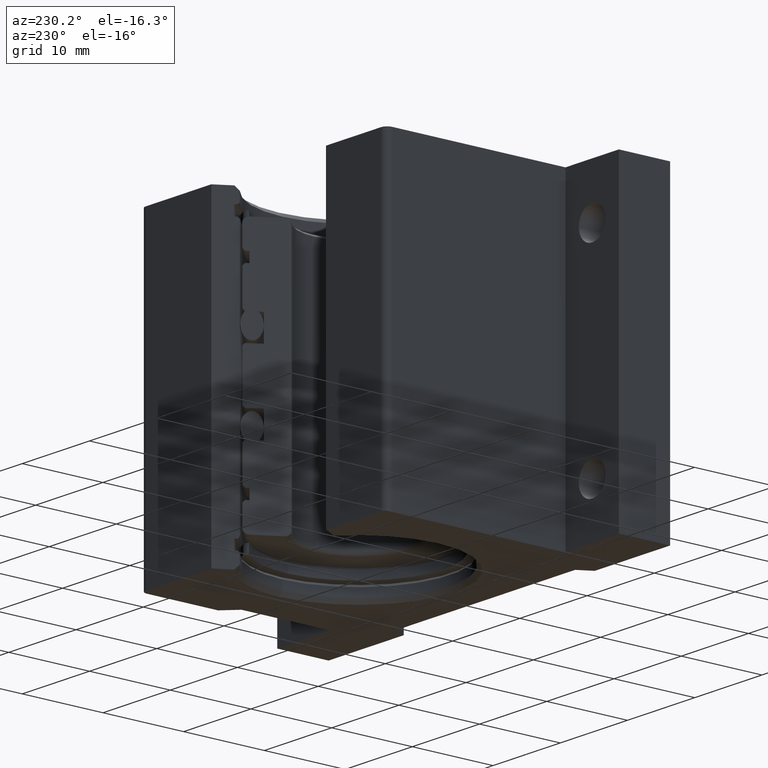
[diagram: clean part render]
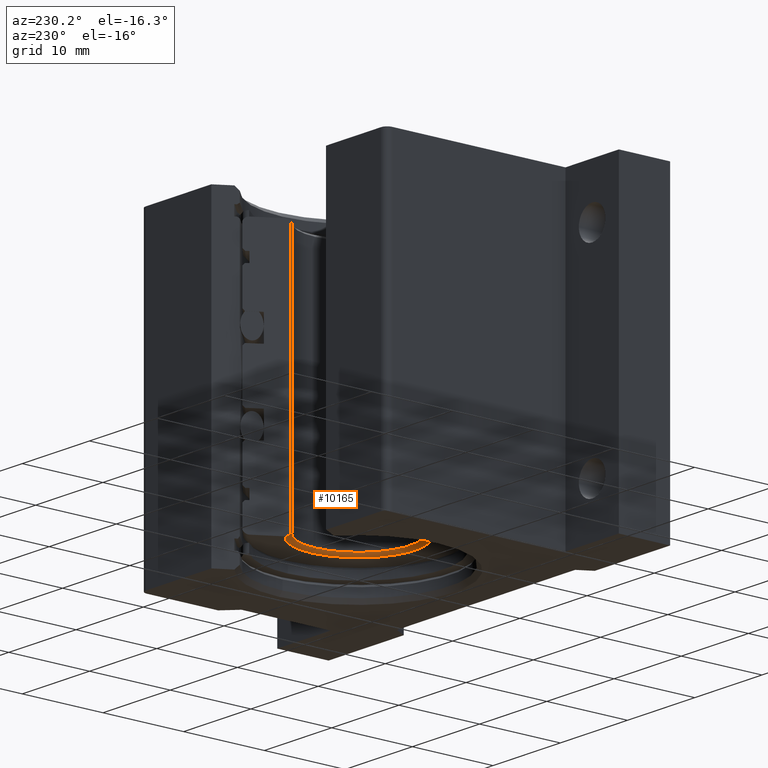
[diagram: same view with one face highlighted and labeled with its STEP entity id]
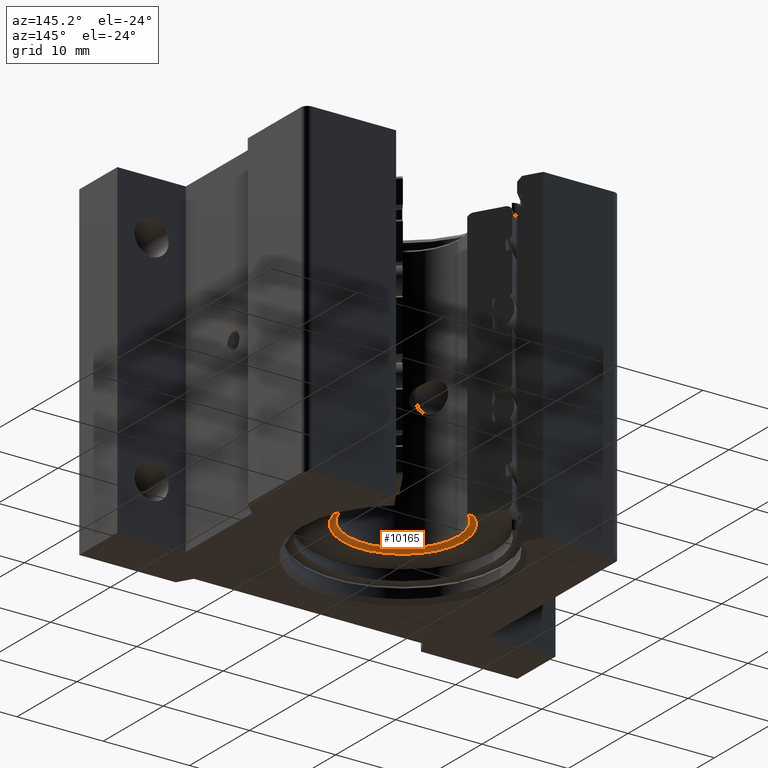
[diagram: same view with one face highlighted and labeled with its STEP entity id]
A machine part, auxiliary view. The second image highlights one B-rep face of the part: STEP entity #10165.
A second angle (auxiliary view) of the same face is appended — the face is thin or edge-on in the first view.
In plain terms, the highlighted toroidal blend (fillet) surface has major radius 7.0352 mm and minor (blend) radius 0.762 mm.
Its self-contained STEP definition (entity closure, byte-faithful):
#121 = CARTESIAN_POINT ( 'NONE',  ( 0.000000000000000000, -7.023156803840997818E-17, -0.6070534806292791075 ) ) ;
#244 = DIRECTION ( 'NONE',  ( 0.000000000000000000, 1.000000000000000000, -4.948999988522215975E-16 ) ) ;
#353 = DIRECTION ( 'NONE',  ( 0.000000000000000000, 1.224646799147353207E-16, 1.000000000000000000 ) ) ;
#377 = ORIENTED_EDGE ( 'NONE', *, *, #765, .T. ) ;
#379 = CARTESIAN_POINT ( 'NONE',  ( 0.000000000000000000, -7.023156803840997818E-17, -0.6070534806292791075 ) ) ;
#435 = CARTESIAN_POINT ( 'NONE',  ( -0.1638920012166681928, 0.2096469794995290681, -0.6209123194039003479 ) ) ;
#548 = TOROIDAL_SURFACE ( 'NONE', #8272, 0.2769749999999999712, 0.03000000000000002318 ) ;
#689 = DIRECTION ( 'NONE',  ( -0.000000000000000000, -1.224646799147353207E-16, -1.000000000000000000 ) ) ;
#745 = CIRCLE ( 'NONE', #7631, 0.2760000000000000231 ) ;
#765 = EDGE_CURVE ( 'NONE', #7533, #10410, #10062, .T. ) ;
#792 = DIRECTION ( 'NONE',  ( 0.000000000000000000, 1.000000000000000000, -1.224646799147352961E-16 ) ) ;
#1034 = ORIENTED_EDGE ( 'NONE', *, *, #9368, .T. ) ;
#1362 = CARTESIAN_POINT ( 'NONE',  ( 0.1688860082560865727, 0.2182968534251583659, -0.6212341520640487502 ) ) ;
#1373 = CARTESIAN_POINT ( 'NONE',  ( -0.2514750000000000041, 3.079680538155807146E-17, -0.6070534806292791075 ) ) ;
#1450 = CARTESIAN_POINT ( 'NONE',  ( 0.2760000000000000231, 0.000000000000000000, -0.6212341520640487502 ) ) ;
#1587 = DIRECTION ( 'NONE',  ( 1.776356839400250465E-15, 1.000000000000000000, -4.948999988522215975E-16 ) ) ;
#1622 = AXIS2_PLACEMENT_3D ( 'NONE', #379, #2827, #3521 ) ;
#1669 = AXIS2_PLACEMENT_3D ( 'NONE', #9733, #3986, #1587 ) ;
#1853 = DIRECTION ( 'NONE',  ( 0.000000000000000000, 1.000000000000000000, -2.715824628356957328E-16 ) ) ;
#1946 = EDGE_CURVE ( 'NONE', #7967, #5804, #7430, .T. ) ;
#2065 = EDGE_CURVE ( 'NONE', #7907, #2224, #8792, .T. ) ;
#2224 = VERTEX_POINT ( 'NONE', #10622 ) ;
#2330 = ORIENTED_EDGE ( 'NONE', *, *, #3036, .T. ) ;
#2439 = DIRECTION ( 'NONE',  ( 0.000000000000000000, 1.000000000000000000, -4.948999988522215975E-16 ) ) ;
#2469 = VERTEX_POINT ( 'NONE', #10605 ) ;
#2569 = CARTESIAN_POINT ( 'NONE',  ( 0.2514750000000000041, 1.061536189819736218E-31, -0.6070534806292791075 ) ) ;
#2790 = CIRCLE ( 'NONE', #8133, 0.2514750000000000041 ) ;
#2794 = CARTESIAN_POINT ( 'NONE',  ( -0.1564999999999998892, 0.1968436578226487321, -0.6070534806292792185 ) ) ;
#2807 = ORIENTED_EDGE ( 'NONE', *, *, #1946, .T. ) ;
#2827 = DIRECTION ( 'NONE',  ( 0.000000000000000000, 1.224646799147353207E-16, 1.000000000000000000 ) ) ;
#3036 = EDGE_CURVE ( 'NONE', #10410, #7967, #2790, .T. ) ;
#3153 = EDGE_CURVE ( 'NONE', #6744, #7907, #745, .T. ) ;
#3466 = CARTESIAN_POINT ( 'NONE',  ( 0.1565000000000000002, 0.1968436578226487321, -0.6070534806292807728 ) ) ;
#3521 = DIRECTION ( 'NONE',  ( 0.000000000000000000, 1.000000000000000000, -2.715824628356957328E-16 ) ) ;
#3581 = CARTESIAN_POINT ( 'NONE',  ( 0.1688860082560865727, 0.2182968534251583659, -0.6212341520640487502 ) ) ;
#3986 = DIRECTION ( 'NONE',  ( -0.000000000000000000, -1.224646799147353207E-16, -1.000000000000000000 ) ) ;
#4901 = ORIENTED_EDGE ( 'NONE', *, *, #6401, .F. ) ;
#5164 = EDGE_LOOP ( 'NONE', ( #4901, #377, #2330, #2807, #5251, #7684, #8601, #1034 ) ) ;
#5228 = DIRECTION ( 'NONE',  ( 0.000000000000000000, 1.000000000000000000, -2.715824628356957328E-16 ) ) ;
#5251 = ORIENTED_EDGE ( 'NONE', *, *, #8122, .F. ) ;
#5804 = VERTEX_POINT ( 'NONE', #6507 ) ;
#5851 = AXIS2_PLACEMENT_3D ( 'NONE', #9130, #9179, #244 ) ;
#6401 = EDGE_CURVE ( 'NONE', #7533, #2469, #9456, .T. ) ;
#6507 = CARTESIAN_POINT ( 'NONE',  ( 0.1565000000000000002, 0.1968436578226487321, -0.6070534806292807728 ) ) ;
#6744 = VERTEX_POINT ( 'NONE', #1362 ) ;
#7015 = CARTESIAN_POINT ( 'NONE',  ( -0.1688860082560866283, 0.2182968534251583936, -0.6212341520640487502 ) ) ;
#7258 = B_SPLINE_CURVE_WITH_KNOTS ( 'NONE', 3,
 ( #3581, #8558, #10181, #3466 ),
 .UNSPECIFIED., .F., .F.,
 ( 4, 4 ),
 ( 2.277938103354167691E-07, 0.0007509806391167035125 ),
 .UNSPECIFIED. ) ;
#7430 = CIRCLE ( 'NONE', #7602, 0.2514750000000000041 ) ;
#7533 = VERTEX_POINT ( 'NONE', #9072 ) ;
#7602 = AXIS2_PLACEMENT_3D ( 'NONE', #7743, #353, #1853 ) ;
#7631 = AXIS2_PLACEMENT_3D ( 'NONE', #8974, #689, #2439 ) ;
#7684 = ORIENTED_EDGE ( 'NONE', *, *, #3153, .T. ) ;
#7713 = CIRCLE ( 'NONE', #1669, 0.2760000000000000231 ) ;
#7743 = CARTESIAN_POINT ( 'NONE',  ( 0.000000000000000000, -7.023156803840997818E-17, -0.6070534806292791075 ) ) ;
#7907 = VERTEX_POINT ( 'NONE', #1450 ) ;
#7967 = VERTEX_POINT ( 'NONE', #2569 ) ;
#8122 = EDGE_CURVE ( 'NONE', #6744, #5804, #7258, .T. ) ;
#8133 = AXIS2_PLACEMENT_3D ( 'NONE', #121, #9331, #5228 ) ;
#8272 = AXIS2_PLACEMENT_3D ( 'NONE', #9683, #10533, #792 ) ;
#8558 = CARTESIAN_POINT ( 'NONE',  ( 0.1638919177847064923, 0.2096468349911324580, -0.6209123140272299057 ) ) ;
#8601 = ORIENTED_EDGE ( 'NONE', *, *, #2065, .T. ) ;
#8632 = CARTESIAN_POINT ( 'NONE',  ( -0.1591534311868263163, 0.2014395354526197224, -0.6155227112161409941 ) ) ;
#8792 = CIRCLE ( 'NONE', #5851, 0.2760000000000000231 ) ;
#8974 = CARTESIAN_POINT ( 'NONE',  ( 0.000000000000000000, -7.196819942664506463E-17, -0.6212341520640487502 ) ) ;
#9072 = CARTESIAN_POINT ( 'NONE',  ( -0.1564999999999998892, 0.1968436578226487321, -0.6070534806292792185 ) ) ;
#9130 = CARTESIAN_POINT ( 'NONE',  ( 0.000000000000000000, -7.196819942664506463E-17, -0.6212341520640487502 ) ) ;
#9179 = DIRECTION ( 'NONE',  ( -0.000000000000000000, -1.224646799147353207E-16, -1.000000000000000000 ) ) ;
#9272 = FACE_OUTER_BOUND ( 'NONE', #5164, .T. ) ;
#9331 = DIRECTION ( 'NONE',  ( 0.000000000000000000, 1.224646799147353207E-16, 1.000000000000000000 ) ) ;
#9368 = EDGE_CURVE ( 'NONE', #2224, #2469, #7713, .T. ) ;
#9456 = B_SPLINE_CURVE_WITH_KNOTS ( 'NONE', 3,
 ( #2794, #8632, #435, #7015 ),
 .UNSPECIFIED., .F., .F.,
 ( 4, 4 ),
 ( 4.289224686144450697E-07, 0.0007511787335453349581 ),
 .UNSPECIFIED. ) ;
#9683 = CARTESIAN_POINT ( 'NONE',  ( 0.000000000000000000, -6.829619984160658046E-17, -0.5912499999999999423 ) ) ;
#9733 = CARTESIAN_POINT ( 'NONE',  ( 0.000000000000000000, -7.196819942664506463E-17, -0.6212341520640487502 ) ) ;
#10062 = CIRCLE ( 'NONE', #1622, 0.2514750000000000041 ) ;
#10165 = ADVANCED_FACE ( 'NONE', ( #9272 ), #548, .T. ) ;
#10181 = CARTESIAN_POINT ( 'NONE',  ( 0.1591534758162576613, 0.2014396127530623248, -0.6155228536645094284 ) ) ;
#10410 = VERTEX_POINT ( 'NONE', #1373 ) ;
#10533 = DIRECTION ( 'NONE',  ( 0.000000000000000000, 1.224646799147353207E-16, 1.000000000000000000 ) ) ;
#10605 = CARTESIAN_POINT ( 'NONE',  ( -0.1688860082560866283, 0.2182968534251583936, -0.6212341520640487502 ) ) ;
#10622 = CARTESIAN_POINT ( 'NONE',  ( -0.2760000000000000231, 3.380025165646694763E-17, -0.6212341520640487502 ) ) ;